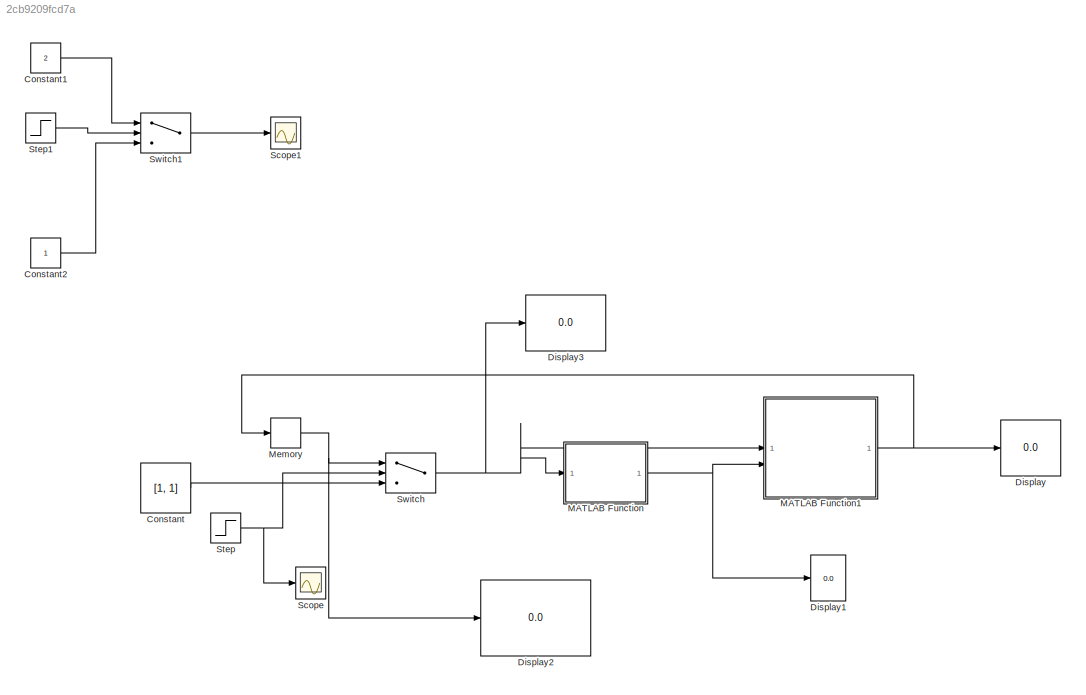
MODEL slx_2cb9209fcd7a
KIND model
CONFIG AbsTol = auto
CONFIG EnableMultiTasking = off
CONFIG FixedStep = auto
CONFIG MaxStep = auto
CONFIG MinStep = auto
CONFIG RelTol = 1e-3
CONFIG SampleTimeConstraint = Unconstrained
CONFIG SolverName = VariableStepAuto
CONFIG StartTime = 0.0
CONFIG StopTime = 10.0
BLOCK [Constant] Constant
  Value = [1, 1]
BLOCK [Constant] Constant1
  Value = 2
BLOCK [Constant] Constant2
BLOCK [Display] Display
  Decimation = 1
BLOCK [Display] Display1
  Decimation = 1
BLOCK [Display] Display2
  Decimation = 1
BLOCK [Display] Display3
  Decimation = 1
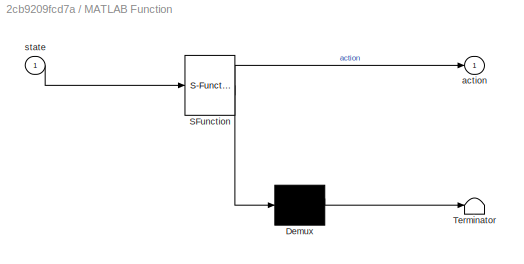
BLOCK [SubSystem] MATLAB Function
  ErrorFcn = Stateflow.Translate.translate
  PermitHierarchicalResolution = ExplicitOnly
  SFBlockType = MATLAB Function
  TreatAsAtomicUnit = on
BLOCK [Demux] MATLAB Function/ Demux 
  Outputs = 1
BLOCK [S-Function] MATLAB Function/ SFunction 
  EnableBusSupport = on
  FunctionName = sf_sfun
  PortCounts = [1 2]
  SFcnIsStateOwnerBlock = off
  SFunctionDeploymentMode = off
  Tag = Stateflow S-Function 2
BLOCK [Terminator] MATLAB Function/ Terminator 
BLOCK [Outport] MATLAB Function/action
BLOCK [Inport] MATLAB Function/state
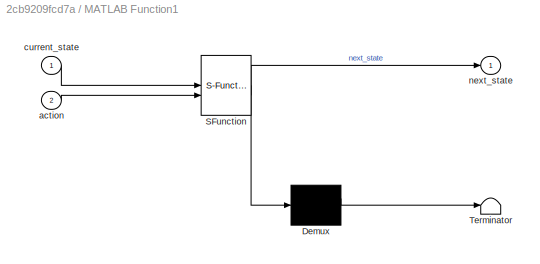
BLOCK [SubSystem] MATLAB Function1
  ErrorFcn = Stateflow.Translate.translate
  PermitHierarchicalResolution = ExplicitOnly
  SFBlockType = MATLAB Function
  TreatAsAtomicUnit = on
BLOCK [Demux] MATLAB Function1/ Demux 
  Outputs = 1
BLOCK [S-Function] MATLAB Function1/ SFunction 
  EnableBusSupport = on
  FunctionName = sf_sfun
  PortCounts = [2 2]
  SFcnIsStateOwnerBlock = off
  SFunctionDeploymentMode = off
  Tag = Stateflow S-Function 1
BLOCK [Terminator] MATLAB Function1/ Terminator 
BLOCK [Inport] MATLAB Function1/action
  Port = 2
BLOCK [Inport] MATLAB Function1/current_state
BLOCK [Outport] MATLAB Function1/next_state
BLOCK [Memory] Memory
BLOCK [Scope] Scope
  Floating = off
  NumInputPorts = 1
  ScopeSpecificationString = Simulink.scopes.TimeScopeBlockCfg('CurrentConfiguration', extmgr.ConfigurationSet(extmgr.Configuration('Core','General UI',true),extmgr.Configuration('Core','Source UI',true),extmgr.Configuration('Sources','WiredSimulink',true),extmgr.Configuration('Visuals','Time Domain',true,'SerializedDisplays',{struct('MinYLimReal','-0.125','MaxYLimReal','1.125','YLabelReal','','MinYLimMag','0.00000','MaxYLimM...<+1443ch>
BLOCK [Scope] Scope1
  Floating = off
  NumInputPorts = 1
  ScopeSpecificationString = Simulink.scopes.TimeScopeBlockCfg('CurrentConfiguration', extmgr.ConfigurationSet(extmgr.Configuration('Core','General UI',true),extmgr.Configuration('Core','Source UI',true),extmgr.Configuration('Sources','WiredSimulink',true,'DataLoggingVariableName','ScopeData1'),extmgr.Configuration('Visuals','Time Domain',true,'SerializedDisplays',{struct('MinYLimReal','0.875','MaxYLimReal','2.125','YLabelRea...<+1479ch>
BLOCK [Step] Step
  SampleTime = 1
BLOCK [Step] Step1
  SampleTime = 0
BLOCK [Switch] Switch
  Criteria = u2 > Threshold
  InputSameDT = off
  SaturateOnIntegerOverflow = off
BLOCK [Switch] Switch1
  Criteria = u2 > Threshold
  InputSameDT = off
  SaturateOnIntegerOverflow = off
LINE Constant1:1 -> Switch1:1
LINE Constant2:1 -> Switch1:3
LINE Constant:1 -> Switch:3
NET MATLAB Function1:1 -> Display:1, Memory:1
NET MATLAB Function:1 -> Display1:1, MATLAB Function1:2
NET Memory:1 -> Display2:1, Switch:1
LINE Step1:1 -> Switch1:2
NET Step:1 -> Scope:1, Switch:2
LINE Switch1:1 -> Scope1:1
NET Switch:1 -> Display3:1, MATLAB Function1:1, MATLAB Function:1
note: NET lines group one-source signal fan-out (src -> all destinations, sorted); 1:1 wires keep LINE
CHART MATLAB Function states=1 transitions=1
  STATE_LABEL 'eML_blk_kernel()'
  STATE_LABEL "SCRIPT:\nfunction action = get_q_action(state)\n    persistent Q_table;\n    \n    % Load policy only once\n    if isempty(Q_table)\n        data = load('policy.mat');\n        Q_table = data.policy; % Load Q-table\n    end\n    \n    % Get the best action for the given state\n    row = state(1);\n    col = state(2);\n    q_values = squeeze(Q_table(row, col, :)); % Extract Q-values for the state\n    \n    % Sel...<+63ch>"
CHART MATLAB Function1 states=1 transitions=1
  STATE_LABEL 'eML_blk_kernel()'
  STATE_LABEL 'SCRIPT:\nfunction next_state = update_position(current_state, action)\n    % Define grid limits\n    grid_size = [4, 4]; % 4x4 Grid World\n    \n    % Extract current position\n    row = current_state(1);\n    col = current_state(2);\n    \n    % Define action moves (same as Q-learning actions)\n    moves = [-1 0;  % Up\n             1 0;   % Down\n             0 -1;  % Left\n             0 1];  % Right\n    \n ...<+339ch>'
CHART  states=0 transitions=0
CHART  states=0 transitions=0
